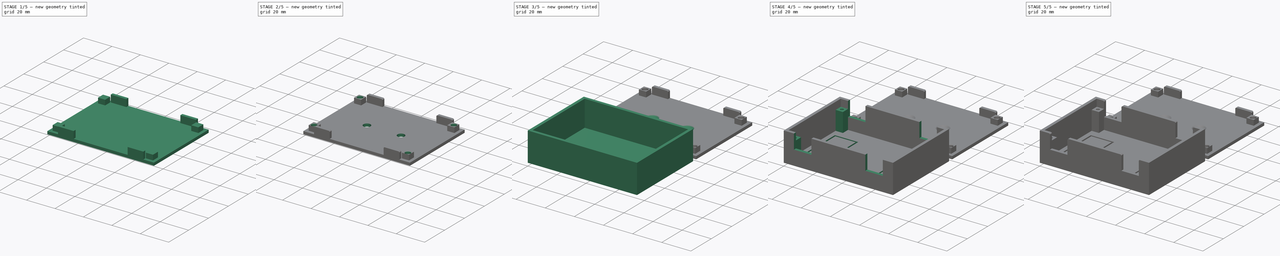
[diagram: build sequence overview — one tinted view per stage of 5, left to right]
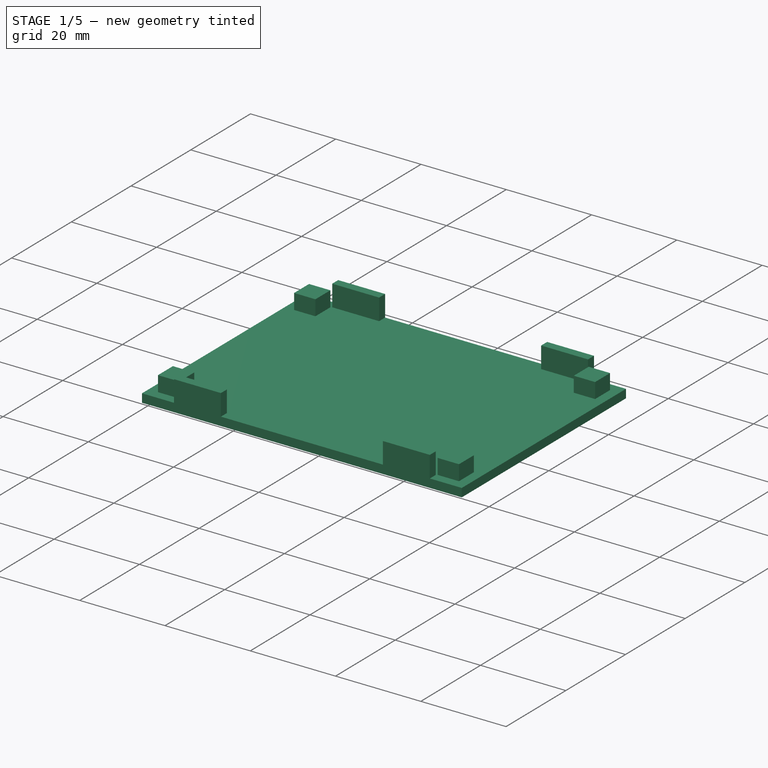
[diagram: stage 1 of 5 — iso view after this stage's code; geometry added in this stage tinted green]
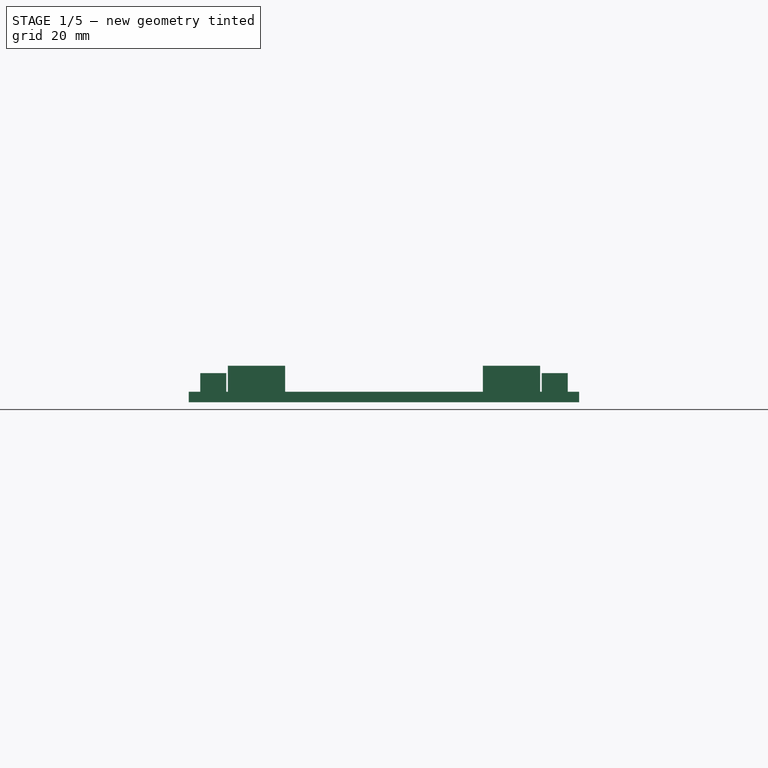
[diagram: stage 1 of 5 — front view after this stage's code; geometry added in this stage tinted green]
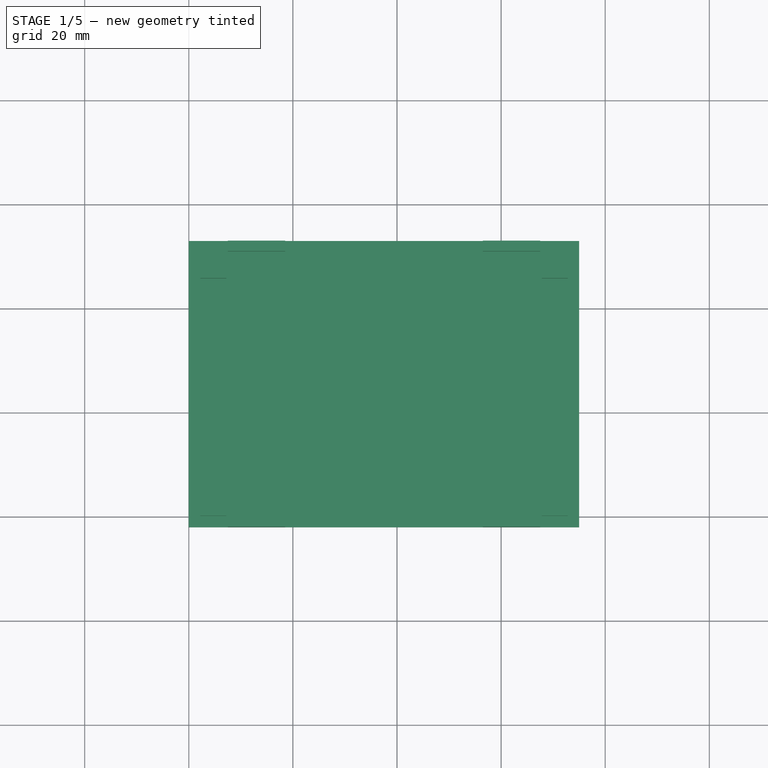
[diagram: stage 1 of 5 — top view after this stage's code; geometry added in this stage tinted green]
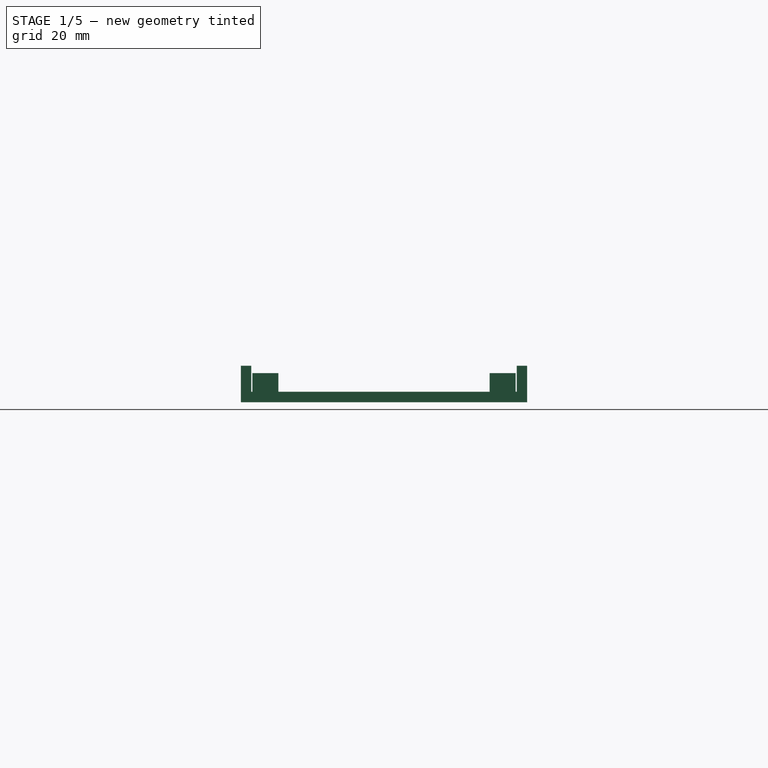
[diagram: stage 1 of 5 — right view after this stage's code; geometry added in this stage tinted green]
FCSTD DOCUMENT  (FreeCAD 0.20R29177 +426 (Git))
Label: Button_Housing
License: All rights reserved
LicenseURL: http://en.wikipedia.org/wiki/All_rights_reserved
objects: Sketcher::SketchObject×12, PartDesign::Pocket×7, PartDesign::Pad×5, PartDesign::Chamfer×4, PartDesign::Body×2, App::Part×2, PartDesign::Fillet×1
note: 48 computed .brp shape members not serialized (recipe doc carries the construction recipe); baked Part::Feature solids carry a one-line shape summary decoded from their .brp

FEATURE [PartDesign::Body] Body
  Group = -> [Sketch,Pad,Sketch001,Pocket,Sketch002,Pad001,Sketch003,Pocket001,Sketch004,Pocket002,Sketch006,Pocket004,Sketch007,Pocket005,Fillet,Chamfer]
  Origin = -> Origin001
  Tip = -> Chamfer
FEATURE [App::Part] Part
  Group = -> [Body]
  Origin = -> Origin
FEATURE [Sketcher::SketchObject] Sketch008
  FullyConstrained = true
  MapMode = 5
  Support = -> [XY_Plane003]
  sketch-geometry (4):
    g0: LineSegment StartX=0 StartY=58 StartZ=0 EndX=75 EndY=58 EndZ=0
    g1: LineSegment StartX=75 StartY=58 StartZ=0 EndX=75 EndY=113 EndZ=0
    g2: LineSegment StartX=75 StartY=113 StartZ=0 EndX=0 EndY=113 EndZ=0
    g3: LineSegment StartX=0 StartY=113 StartZ=0 EndX=0 EndY=58 EndZ=0
  constraints (12):
    c: Coincident(g0,g1)
    c: Coincident(g1,g2)
    c: Coincident(g2,g3)
    c: Coincident(g3,g0)
    c: Horizontal(g0)
    c: Horizontal(g2)
    c: Vertical(g1)
    c: Vertical(g3)
    c: PointOnObject(g0,g-2)
    c: DistanceY(g-1,g0) = 58
    c: DistanceY(g3,g3) = 55
    c: DistanceX(g0,g0) = 75
FEATURE [PartDesign::Pad] Pad002
  Direction = (0,0,1)
  Length = 2
  Length2 = 10
  Profile = -> Sketch008
  ReferenceAxis = -> Sketch008 [N_Axis]
  Type = 0
FEATURE [Sketcher::SketchObject] Sketch009
  FullyConstrained = true
  MapMode = 5
  Placement = pos=(0,0,2) rot=(0,0,1;0rad)
  Support = -> [Pad002]
  sketch-geometry (16):
    g0: LineSegment StartX=7.5 StartY=58 StartZ=0 EndX=18.5 EndY=58 EndZ=0
    g1: LineSegment StartX=18.5 StartY=58 StartZ=0 EndX=18.5 EndY=60 EndZ=0
    g2: LineSegment StartX=18.5 StartY=60 StartZ=0 EndX=7.5 EndY=60 EndZ=0
    g3: LineSegment StartX=7.5 StartY=60 StartZ=0 EndX=7.5 EndY=58 EndZ=0
    g4: LineSegment StartX=56.5 StartY=58 StartZ=0 EndX=67.5 EndY=58 EndZ=0
    g5: LineSegment StartX=67.5 StartY=58 StartZ=0 EndX=67.5 EndY=60 EndZ=0
    g6: LineSegment StartX=67.5 StartY=60 StartZ=0 EndX=56.5 EndY=60 EndZ=0
    g7: LineSegment StartX=56.5 StartY=60 StartZ=0 EndX=56.5 EndY=58 EndZ=0
    g8: LineSegment StartX=7.5 StartY=111 StartZ=0 EndX=18.5 EndY=111 EndZ=0
    g9: LineSegment StartX=18.5 StartY=111 StartZ=0 EndX=18.5 EndY=113 EndZ=0
    g10: LineSegment StartX=18.5 StartY=113 StartZ=0 EndX=7.5 EndY=113 EndZ=0
    g11: LineSegment StartX=7.5 StartY=113 StartZ=0 EndX=7.5 EndY=111 EndZ=0
    g12: LineSegment StartX=56.5 StartY=111 StartZ=0 EndX=67.5 EndY=111 EndZ=0
    g13: LineSegment StartX=67.5 StartY=111 StartZ=0 EndX=67.5 EndY=113 EndZ=0
    g14: LineSegment StartX=67.5 StartY=113 StartZ=0 EndX=56.5 EndY=113 EndZ=0
    g15: LineSegment StartX=56.5 StartY=113 StartZ=0 EndX=56.5 EndY=111 EndZ=0
  constraints (48):
    c: Coincident(g0,g1)
    c: Coincident(g1,g2)
    c: Coincident(g2,g3)
    c: Coincident(g3,g0)
    c: Horizontal(g0)
    c: Horizontal(g2)
    c: Vertical(g1)
    c: Vertical(g3)
    c: Coincident(g4,g5)
    c: Coincident(g5,g6)
    c: Coincident(g6,g7)
    c: Coincident(g7,g4)
    c: Horizontal(g4)
    c: Horizontal(g6)
    c: Vertical(g5)
    c: Vertical(g7)
    c: Coincident(g8,g9)
    c: Coincident(g9,g10)
    c: Coincident(g10,g11)
    c: Coincident(g11,g8)
    c: Horizontal(g8)
    c: Horizontal(g10)
    c: Vertical(g9)
    c: Vertical(g11)
    c: Coincident(g12,g13)
    c: Coincident(g13,g14)
    c: Coincident(g14,g15)
    c: Coincident(g15,g12)
    c: Horizontal(g12)
    c: Horizontal(g14)
    c: Vertical(g13)
    c: Vertical(g15)
    c: Equal(g15,g11)
    c: Equal(g11,g3)
    c: Equal(g3,g7)
    c: Equal(g4,g0)
    c: Equal(g0,g8)
    c: Equal(g8,g12)
    c: Vertical(g8,g0)
    c: Vertical(g12,g4)
    c: Horizontal(g0,g4)
    c: Horizontal(g8,g12)
    c: DistanceY(g-1,g0) = 58
    c: DistanceX(g0,g0) = 11
    c: DistanceX(g-1,g0) = 7.5
    c: DistanceX(g-1,g4) = 67.5
    c: DistanceY(g3,g3) = 2
    c: DistanceY(g0,g10) = 55
FEATURE [PartDesign::Pad] Pad003
  BaseFeature = -> Pad002
  Direction = (0,0,1)
  Length = 5
  Length2 = 10
  Profile = -> Sketch009
  ReferenceAxis = -> Sketch009 [N_Axis]
  Type = 0
FEATURE [Sketcher::SketchObject] Sketch010
  FullyConstrained = true
  MapMode = 5
  Placement = pos=(0,0,2) rot=(0,0,1;0rad)
  Support = -> [Pad003]
  expr: Constraints[41] = 55 - 4.4
  sketch-geometry (16):
    g0: LineSegment StartX=2.2 StartY=60.2 StartZ=0 EndX=7.2 EndY=60.2 EndZ=0
    g1: LineSegment StartX=7.2 StartY=60.2 StartZ=0 EndX=7.2 EndY=65.2 EndZ=0
    g2: LineSegment StartX=7.2 StartY=65.2 StartZ=0 EndX=2.2 EndY=65.2 EndZ=0
    g3: LineSegment StartX=2.2 StartY=65.2 StartZ=0 EndX=2.2 EndY=60.2 EndZ=0
    g4: LineSegment StartX=67.8 StartY=60.2 StartZ=0 EndX=72.8 EndY=60.2 EndZ=0
    g5: LineSegment StartX=72.8 StartY=60.2 StartZ=0 EndX=72.8 EndY=65.2 EndZ=0
    g6: LineSegment StartX=72.8 StartY=65.2 StartZ=0 EndX=67.8 EndY=65.2 EndZ=0
    g7: LineSegment StartX=67.8 StartY=65.2 StartZ=0 EndX=67.8 EndY=60.2 EndZ=0
    g8: LineSegment StartX=2.2 StartY=110.8 StartZ=0 EndX=7.2 EndY=110.8 EndZ=0
    g9: LineSegment StartX=7.2 StartY=110.8 StartZ=0 EndX=7.2 EndY=105.8 EndZ=0
    g10: LineSegment StartX=7.2 StartY=105.8 StartZ=0 EndX=2.2 EndY=105.8 EndZ=0
    g11: LineSegment StartX=2.2 StartY=105.8 StartZ=0 EndX=2.2 EndY=110.8 EndZ=0
    g12: LineSegment StartX=67.8 StartY=110.8 StartZ=0 EndX=72.8 EndY=110.8 EndZ=0
    g13: LineSegment StartX=72.8 StartY=110.8 StartZ=0 EndX=72.8 EndY=105.8 EndZ=0
    g14: LineSegment StartX=72.8 StartY=105.8 StartZ=0 EndX=67.8 EndY=105.8 EndZ=0
    g15: LineSegment StartX=67.8 StartY=105.8 StartZ=0 EndX=67.8 EndY=110.8 EndZ=0
  constraints (48):
    c: Coincident(g0,g1)
    c: Coincident(g1,g2)
    c: Coincident(g2,g3)
    c: Coincident(g3,g0)
    c: Horizontal(g0)
    c: Horizontal(g2)
    c: Vertical(g1)
    c: Vertical(g3)
    c: Coincident(g4,g5)
    c: Coincident(g5,g6)
    c: Coincident(g6,g7)
    c: Coincident(g7,g4)
    c: Horizontal(g4)
    c: Horizontal(g6)
    c: Vertical(g5)
    c: Vertical(g7)
    c: Coincident(g8,g9)
    c: Coincident(g9,g10)
    c: Coincident(g10,g11)
    c: Coincident(g11,g8)
    c: Horizontal(g8)
    c: Horizontal(g10)
    c: Vertical(g9)
    c: Vertical(g11)
    c: Coincident(g12,g13)
    c: Coincident(g13,g14)
    c: Coincident(g14,g15)
    c: Coincident(g15,g12)
    c: Horizontal(g12)
    c: Horizontal(g14)
    c: Vertical(g13)
    c: Vertical(g15)
    c: DistanceX(g-1,g0) = 2.2
    c: Equal(g0,g3)
    c: Equal(g3,g4)
    c: Equal(g4,g7)
    c: Equal(g7,g11)
    c: Equal(g11,g10)
    c: Equal(g10,g15)
    c: Equal(g15,g14)
    c: DistanceX(g-1,g4) = 72.8
    c: DistanceY(g0,g8) = 50.6
    c: Horizontal(g12,g8)
    c: Horizontal(g2,g6)
    c: Vertical(g0,g10)
    c: Vertical(g6,g14)
    c: DistanceX(g0,g0) = 5
    c: DistanceY(g-1,g0) = 60.2
FEATURE [PartDesign::Pad] Pad004
  BaseFeature = -> Pad003
  Direction = (0,0,1)
  Length = 3.6
  Length2 = 10
  Profile = -> Sketch010
  ReferenceAxis = -> Sketch010 [N_Axis]
  Type = 0
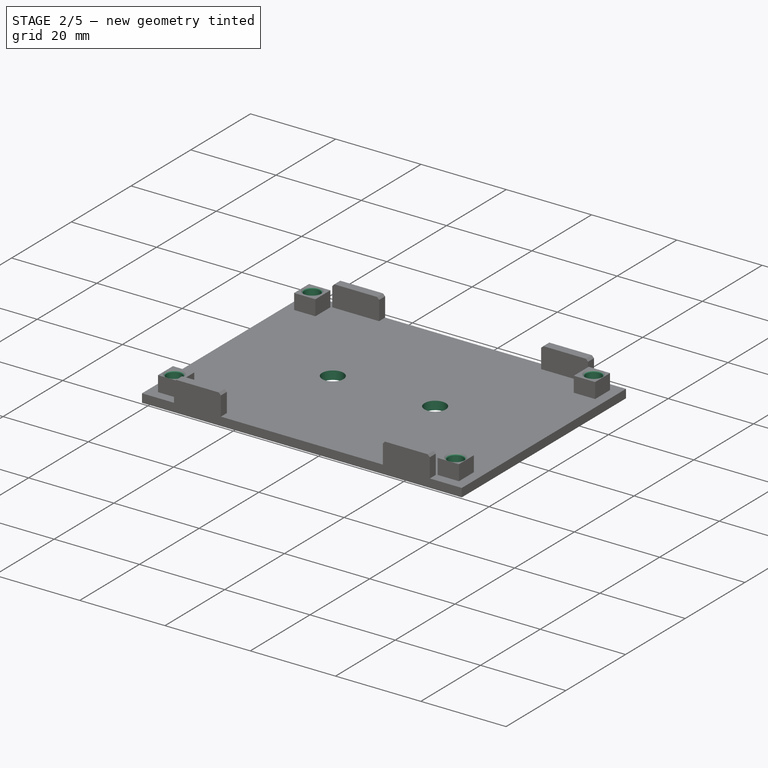
[diagram: stage 2 of 5 — iso view after this stage's code; geometry added in this stage tinted green]
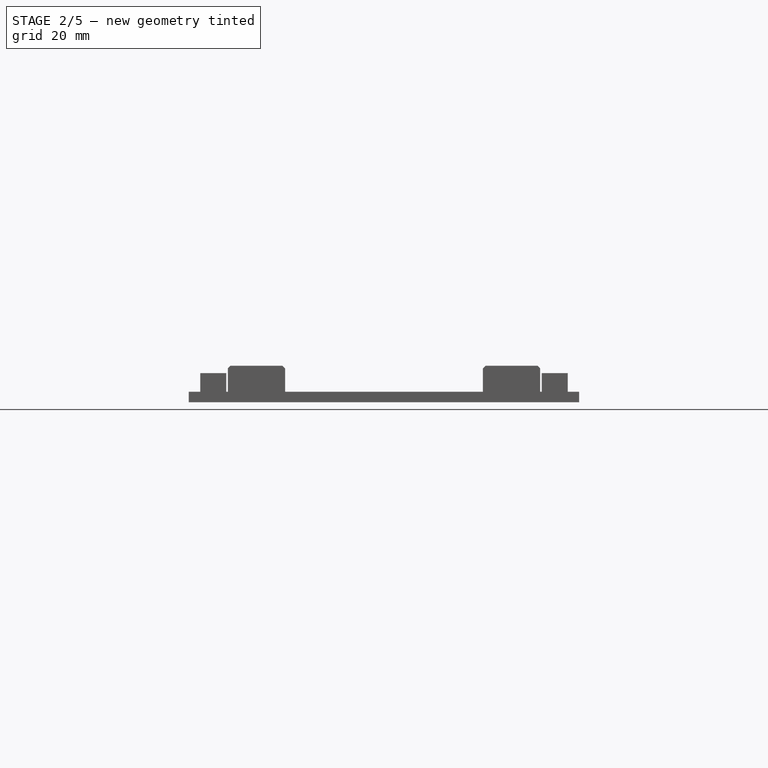
[diagram: stage 2 of 5 — front view after this stage's code; geometry added in this stage tinted green]
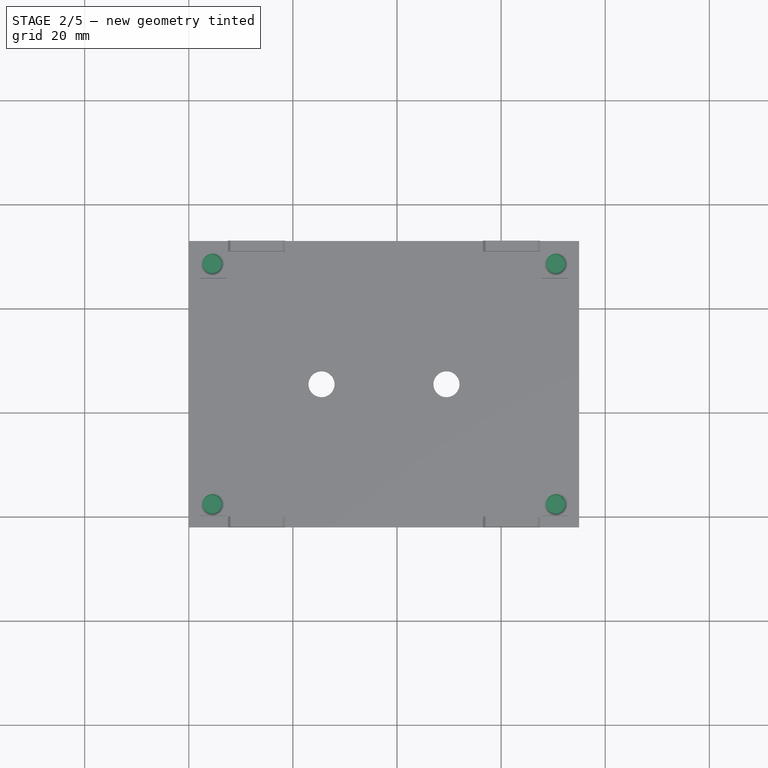
[diagram: stage 2 of 5 — top view after this stage's code; geometry added in this stage tinted green]
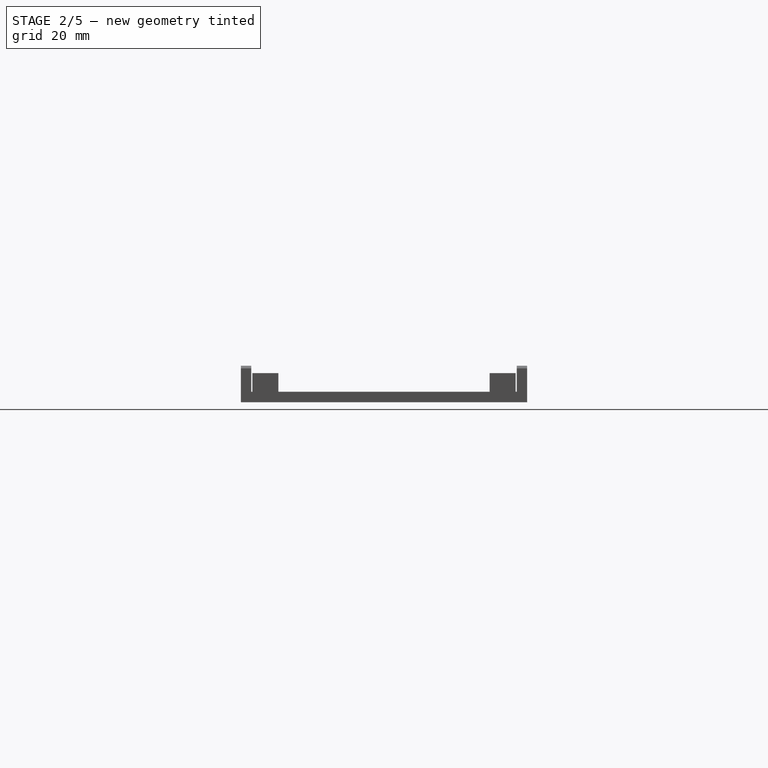
[diagram: stage 2 of 5 — right view after this stage's code; geometry added in this stage tinted green]
FEATURE [Sketcher::SketchObject] Sketch011
  FullyConstrained = true
  MapMode = 5
  Placement = pos=(0,0,5.6) rot=(0,0,1;0rad)
  Support = -> [Pad004]
  sketch-geometry (4):
    g0: Circle CenterX=4.5 CenterY=62.4 CenterZ=0 NormalX=0 NormalY=0 NormalZ=1 AngleXU=0 Radius=1.8
    g1: Circle CenterX=70.5 CenterY=62.4 CenterZ=0 NormalX=0 NormalY=0 NormalZ=1 AngleXU=0 Radius=1.8
    g2: Circle CenterX=70.5 CenterY=108.6 CenterZ=0 NormalX=0 NormalY=0 NormalZ=1 AngleXU=0 Radius=1.8
    g3: Circle CenterX=4.5 CenterY=108.6 CenterZ=0 NormalX=0 NormalY=0 NormalZ=1 AngleXU=0 Radius=1.8
  constraints (12):
    c: Equal(g3,g0)
    c: Equal(g0,g1)
    c: Equal(g1,g2)
    c: Horizontal(g3,g2)
    c: Horizontal(g0,g1)
    c: Vertical(g1,g2)
    c: Vertical(g3,g0)
    c: DistanceX(g0,g1) = 66
    c: DistanceY(g0,g3) = 46.2
    c: DistanceX(g-1,g0) = 4.5
    c: DistanceY(g-1,g0) = 62.4
    c: Diameter(g0) = 3.6
FEATURE [PartDesign::Pocket] Pocket006
  BaseFeature = -> Pad004
  Direction = (0,0,-1)
  Length = 4
  Length2 = 5
  Profile = -> Sketch011
  ReferenceAxis = -> Sketch011 [N_Axis]
  Type = 0
FEATURE [PartDesign::Chamfer] Chamfer001
  Angle = 45
  Base = -> Pocket006 [Edge59,Edge66,Edge71,Edge78,Edge69,Edge77,Edge57,Edge65]
  BaseFeature = -> Pocket006
  ChamferType = 0
  FlipDirection = false
  Size = 0.5
  Size2 = 1
  SupportTransform = false
  UseAllEdges = false
FEATURE [PartDesign::Chamfer] Chamfer002
  Angle = 45
  Base = -> Chamfer001 [Edge139,Edge140,Edge138,Edge137]
  BaseFeature = -> Chamfer001
  ChamferType = 0
  FlipDirection = false
  Size = 0.4
  Size2 = 1
  SupportTransform = false
  UseAllEdges = false
FEATURE [Sketcher::SketchObject] Sketch012
  FullyConstrained = true
  MapMode = 5
  Placement = pos=(0,0,2) rot=(0,0,1;0rad)
  Support = -> [Chamfer002]
  sketch-geometry (2):
    g0: Circle CenterX=25.5 CenterY=85.5 CenterZ=0 NormalX=0 NormalY=0 NormalZ=1 AngleXU=0 Radius=2.5
    g1: Circle CenterX=49.5 CenterY=85.5 CenterZ=0 NormalX=0 NormalY=0 NormalZ=1 AngleXU=0 Radius=2.5
  constraints (6):
    c: Equal(g0,g1)
    c: Horizontal(g0,g1)
    c: Diameter(g0) = 5
    c: DistanceX(g0,g1) = 24
    c: DistanceX(g-1,g0) = 25.5
    c: DistanceY(g-1,g0) = 85.5
FEATURE [PartDesign::Pocket] Pocket007
  BaseFeature = -> Chamfer002
  Direction = (0,0,-1)
  Length = 5
  Length2 = 5
  Profile = -> Sketch012
  ReferenceAxis = -> Sketch012 [N_Axis]
  Type = 1
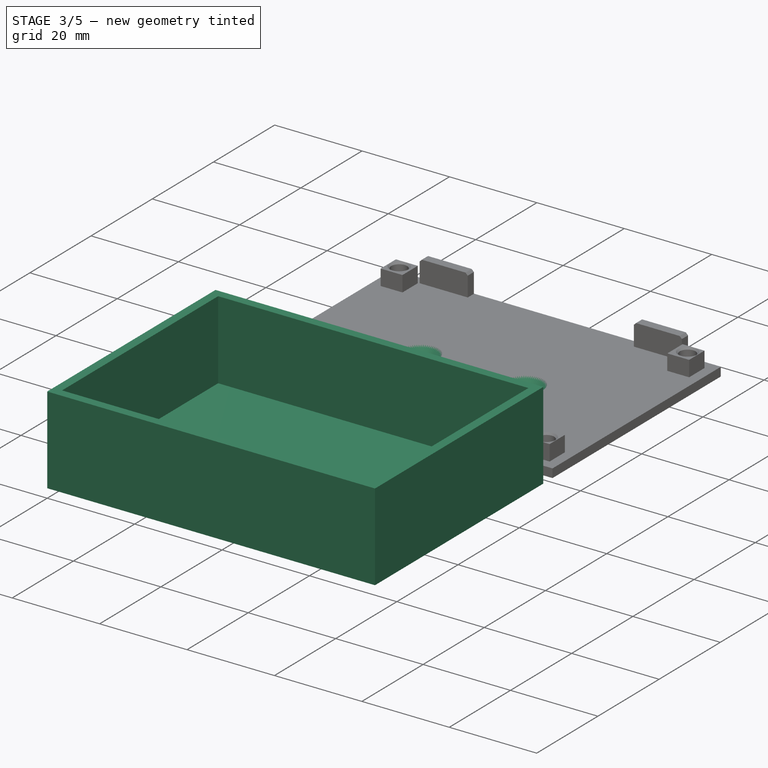
[diagram: stage 3 of 5 — iso view after this stage's code; geometry added in this stage tinted green]
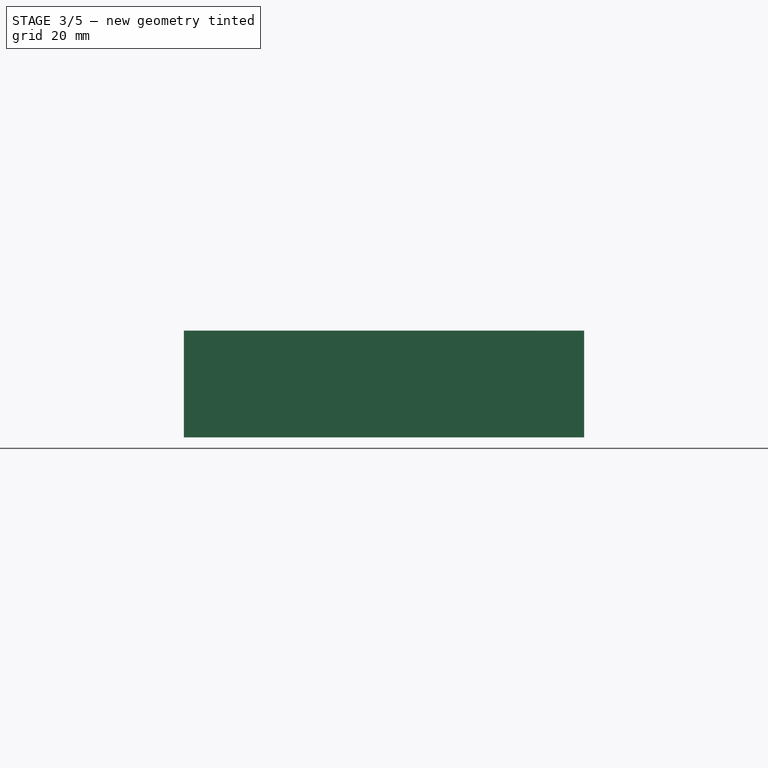
[diagram: stage 3 of 5 — front view after this stage's code; geometry added in this stage tinted green]
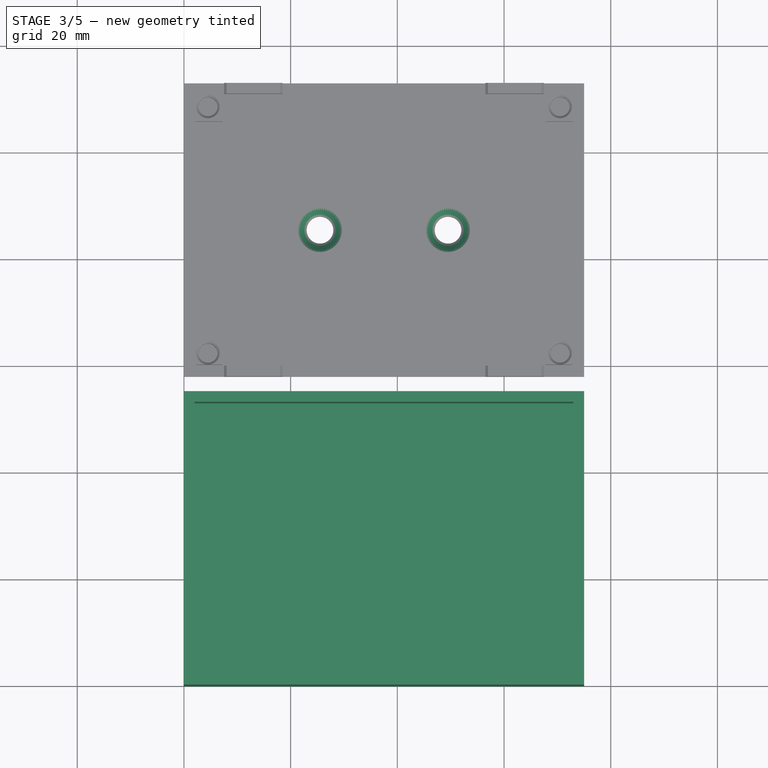
[diagram: stage 3 of 5 — top view after this stage's code; geometry added in this stage tinted green]
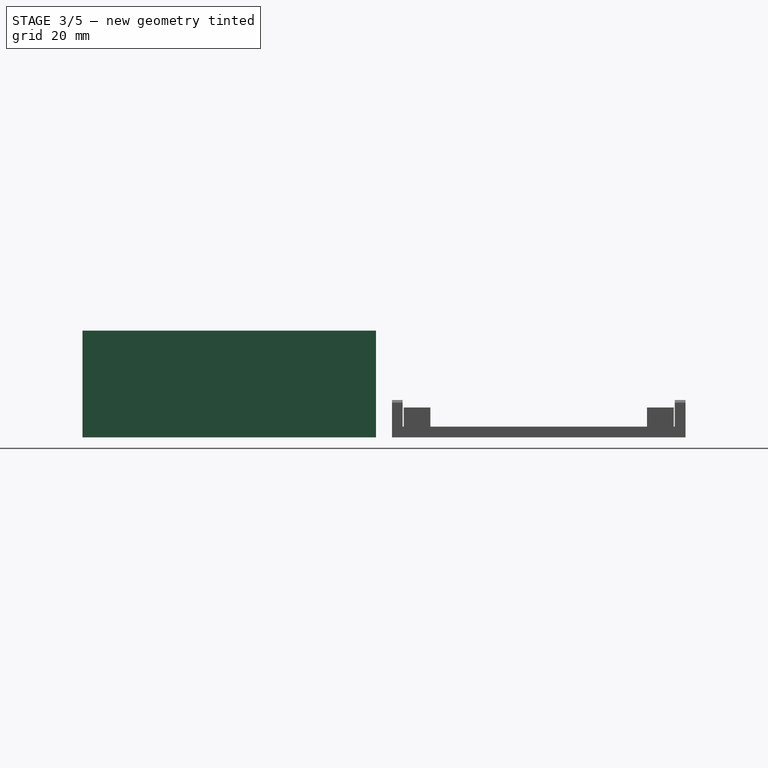
[diagram: stage 3 of 5 — right view after this stage's code; geometry added in this stage tinted green]
FEATURE [Sketcher::SketchObject] Sketch
  FullyConstrained = true
  MapMode = 5
  Support = -> [XY_Plane001]
  sketch-geometry (4):
    g0: LineSegment StartX=0 StartY=0 StartZ=0 EndX=75 EndY=0 EndZ=0
    g1: LineSegment StartX=75 StartY=0 StartZ=0 EndX=75 EndY=55 EndZ=0
    g2: LineSegment StartX=75 StartY=55 StartZ=0 EndX=0 EndY=55 EndZ=0
    g3: LineSegment StartX=0 StartY=55 StartZ=0 EndX=0 EndY=0 EndZ=0
  constraints (11):
    c: Coincident(g0,g1)
    c: Coincident(g1,g2)
    c: Coincident(g2,g3)
    c: Coincident(g3,g0)
    c: Horizontal(g0)
    c: Horizontal(g2)
    c: Vertical(g1)
    c: Vertical(g3)
    c: Coincident(g0,g-1)
    c: DistanceX(g0,g0) = 75
    c: DistanceY(g3,g3) = 55
FEATURE [PartDesign::Pad] Pad
  Direction = (0,0,1)
  Length = 20
  Length2 = 10
  Profile = -> Sketch
  ReferenceAxis = -> Sketch [N_Axis]
  Type = 0
FEATURE [Sketcher::SketchObject] Sketch001
  FullyConstrained = true
  MapMode = 5
  Placement = pos=(0,0,20) rot=(0,0,1;0rad)
  Support = -> [Pad]
  sketch-geometry (4):
    g0: LineSegment StartX=2 StartY=2 StartZ=0 EndX=73 EndY=2 EndZ=0
    g1: LineSegment StartX=73 StartY=2 StartZ=0 EndX=73 EndY=53 EndZ=0
    g2: LineSegment StartX=73 StartY=53 StartZ=0 EndX=2 EndY=53 EndZ=0
    g3: LineSegment StartX=2 StartY=53 StartZ=0 EndX=2 EndY=2 EndZ=0
  constraints (12):
    c: Coincident(g0,g1)
    c: Coincident(g1,g2)
    c: Coincident(g2,g3)
    c: Coincident(g3,g0)
    c: Horizontal(g0)
    c: Horizontal(g2)
    c: Vertical(g1)
    c: Vertical(g3)
    c: DistanceY(g3,g3) = 51
    c: DistanceX(g0,g0) = 71
    c: DistanceY(g-1,g0) = 2
    c: DistanceX(g-1,g0) = 2
FEATURE [PartDesign::Pocket] Pocket
  BaseFeature = -> Pad
  Direction = (0,0,-1)
  Length = 18
  Length2 = 5
  Profile = -> Sketch001
  ReferenceAxis = -> Sketch001 [N_Axis]
  Type = 0
FEATURE [PartDesign::Chamfer] Chamfer003
  Angle = 48
  Base = -> Pocket007 [Edge41,Edge47]
  BaseFeature = -> Pocket007
  ChamferType = 2
  FlipDirection = false
  Size = 1.6
  Size2 = 1
  SupportTransform = false
  UseAllEdges = false
FEATURE [PartDesign::Body] Body001
  Group = -> [Sketch008,Pad002,Sketch009,Pad003,Sketch010,Pad004,Sketch011,Pocket006,Chamfer001,Chamfer002,Sketch012,Pocket007,Chamfer003]
  Origin = -> Origin003
  Tip = -> Chamfer003
FEATURE [App::Part] Part001
  Group = -> [Body001]
  Origin = -> Origin002
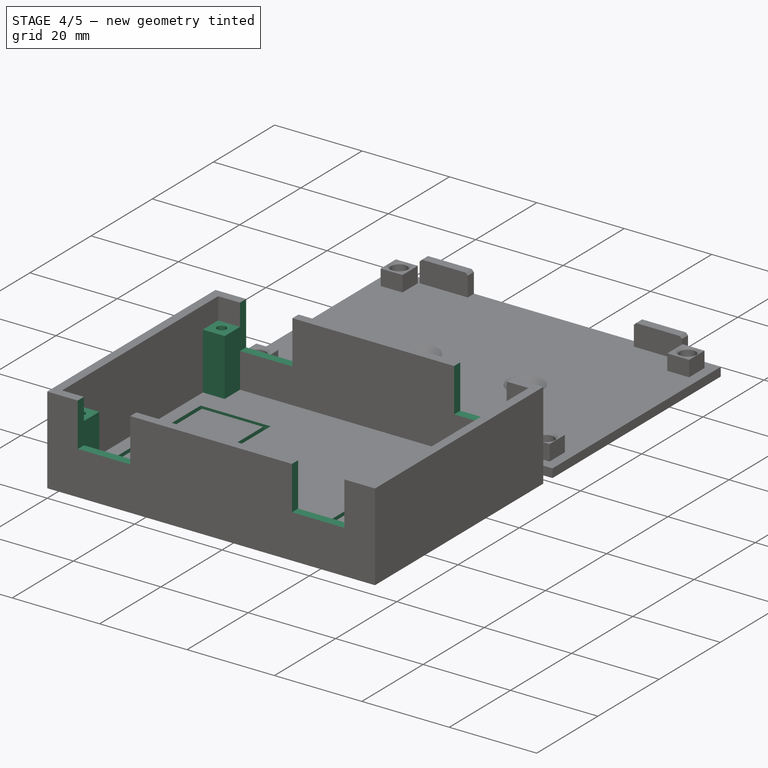
[diagram: stage 4 of 5 — iso view after this stage's code; geometry added in this stage tinted green]
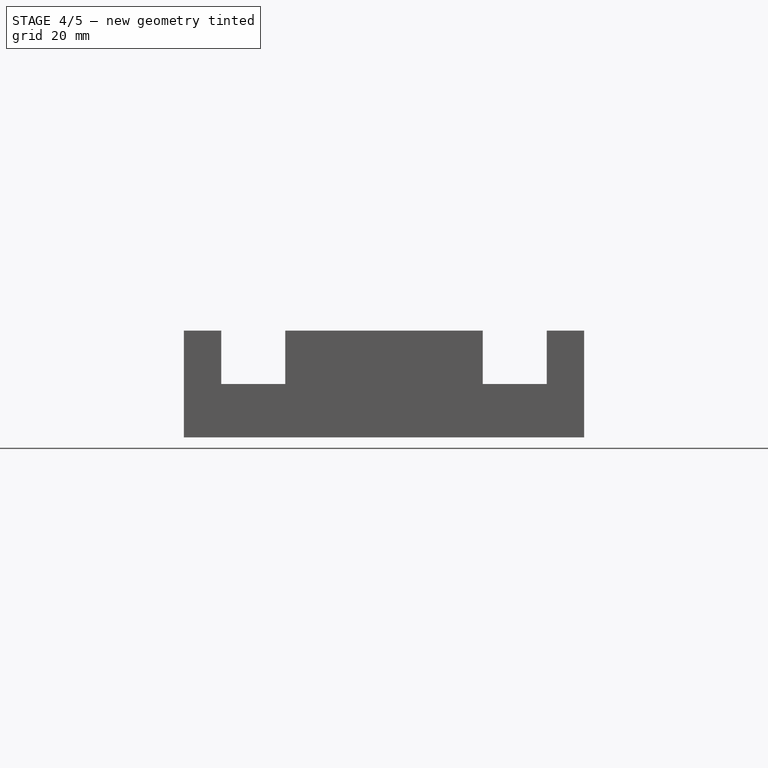
[diagram: stage 4 of 5 — front view after this stage's code; geometry added in this stage tinted green]
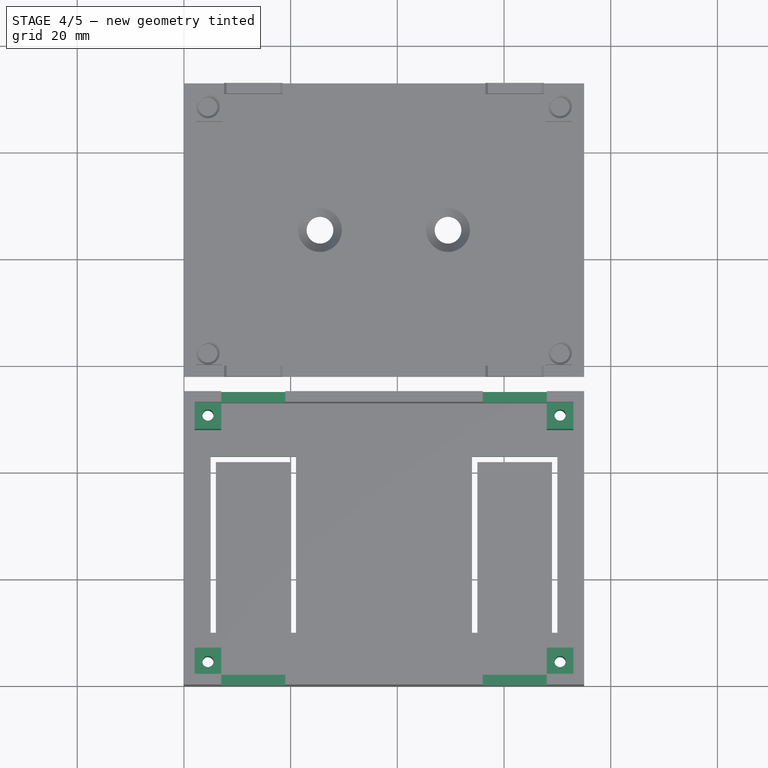
[diagram: stage 4 of 5 — top view after this stage's code; geometry added in this stage tinted green]
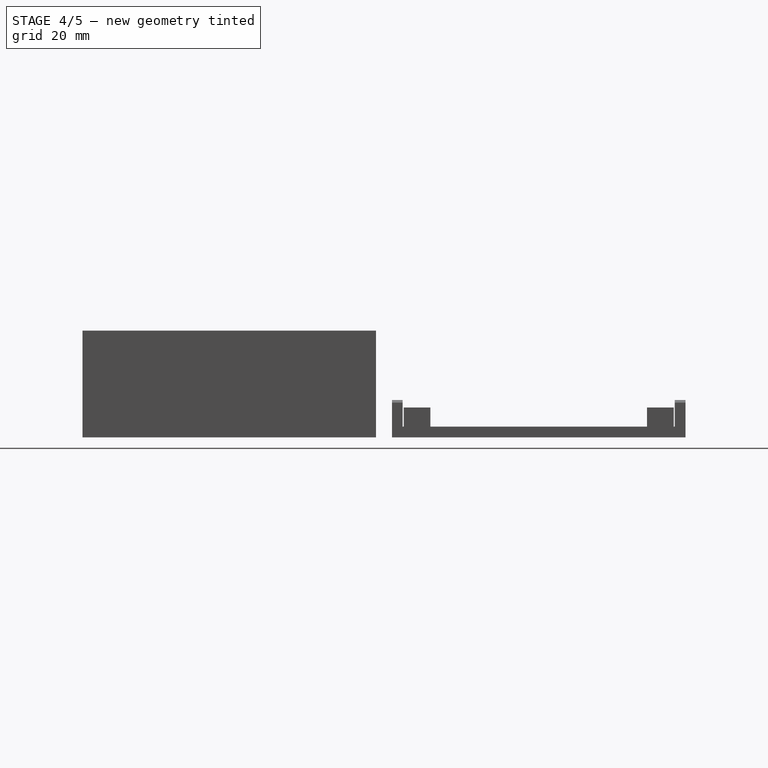
[diagram: stage 4 of 5 — right view after this stage's code; geometry added in this stage tinted green]
FEATURE [Sketcher::SketchObject] Sketch002
  FullyConstrained = true
  MapMode = 5
  Placement = pos=(0,0,2) rot=(0,0,1;0rad)
  Support = -> [Pocket]
  sketch-geometry (16):
    g0: LineSegment StartX=2 StartY=2 StartZ=0 EndX=7 EndY=2 EndZ=0
    g1: LineSegment StartX=7 StartY=2 StartZ=0 EndX=7 EndY=7 EndZ=0
    g2: LineSegment StartX=7 StartY=7 StartZ=0 EndX=2 EndY=7 EndZ=0
    g3: LineSegment StartX=2 StartY=7 StartZ=0 EndX=2 EndY=2 EndZ=0
    g4: LineSegment StartX=68 StartY=2 StartZ=0 EndX=73 EndY=2 EndZ=0
    g5: LineSegment StartX=73 StartY=2 StartZ=0 EndX=73 EndY=7 EndZ=0
    g6: LineSegment StartX=73 StartY=7 StartZ=0 EndX=68 EndY=7 EndZ=0
    g7: LineSegment StartX=68 StartY=7 StartZ=0 EndX=68 EndY=2 EndZ=0
    g8: LineSegment StartX=2 StartY=53 StartZ=0 EndX=7 EndY=53 EndZ=0
    g9: LineSegment StartX=7 StartY=53 StartZ=0 EndX=7 EndY=48 EndZ=0
    g10: LineSegment StartX=7 StartY=48 StartZ=0 EndX=2 EndY=48 EndZ=0
    g11: LineSegment StartX=2 StartY=48 StartZ=0 EndX=2 EndY=53 EndZ=0
    g12: LineSegment StartX=68 StartY=53 StartZ=0 EndX=73 EndY=53 EndZ=0
    g13: LineSegment StartX=73 StartY=53 StartZ=0 EndX=73 EndY=48 EndZ=0
    g14: LineSegment StartX=73 StartY=48 StartZ=0 EndX=68 EndY=48 EndZ=0
    g15: LineSegment StartX=68 StartY=48 StartZ=0 EndX=68 EndY=53 EndZ=0
  constraints (48):
    c: Coincident(g0,g1)
    c: Coincident(g1,g2)
    c: Coincident(g2,g3)
    c: Coincident(g3,g0)
    c: Horizontal(g0)
    c: Horizontal(g2)
    c: Vertical(g1)
    c: Vertical(g3)
    c: Coincident(g4,g5)
    c: Coincident(g5,g6)
    c: Coincident(g6,g7)
    c: Coincident(g7,g4)
    c: Horizontal(g4)
    c: Horizontal(g6)
    c: Vertical(g5)
    c: Vertical(g7)
    c: Coincident(g8,g9)
    c: Coincident(g9,g10)
    c: Coincident(g10,g11)
    c: Coincident(g11,g8)
    c: Horizontal(g8)
    c: Horizontal(g10)
    c: Vertical(g9)
    c: Vertical(g11)
    c: Coincident(g12,g13)
    c: Coincident(g13,g14)
    c: Coincident(g14,g15)
    c: Coincident(g15,g12)
    c: Horizontal(g12)
    c: Horizontal(g14)
    c: Vertical(g13)
    c: Vertical(g15)
    c: Equal(g10,g11)
    c: Equal(g11,g14)
    c: Equal(g14,g15)
    c: Equal(g15,g4)
    c: Equal(g4,g7)
    c: Equal(g7,g0)
    c: Equal(g0,g3)
    c: DistanceX(g-1,g0) = 2
    c: DistanceY(g-1,g0) = 2
    c: Horizontal(g0,g4)
    c: Horizontal(g10,g14)
    c: Vertical(g10,g0)
    c: Vertical(g14,g4)
    c: DistanceY(g-1,g8) = 53
    c: DistanceX(g-1,g4) = 73
    c: DistanceX(g0,g0) = 5
FEATURE [PartDesign::Pad] Pad001
  BaseFeature = -> Pocket
  Direction = (0,0,1)
  Length = 13
  Length2 = 10
  Profile = -> Sketch002
  ReferenceAxis = -> Sketch002 [N_Axis]
  Type = 0
FEATURE [Sketcher::SketchObject] Sketch003
  FullyConstrained = true
  MapMode = 5
  Placement = pos=(0,0,2) rot=(0,0,1;0rad)
  Support = -> [Pad001]
  sketch-geometry (16):
    g0: LineSegment StartX=5 StartY=10 StartZ=0 EndX=5 EndY=43 EndZ=0
    g1: LineSegment StartX=5 StartY=43 StartZ=0 EndX=21 EndY=43 EndZ=0
    g2: LineSegment StartX=21 StartY=43 StartZ=0 EndX=21 EndY=10 EndZ=0
    g3: LineSegment StartX=21 StartY=10 StartZ=0 EndX=20 EndY=10 EndZ=0
    g4: LineSegment StartX=20 StartY=10 StartZ=0 EndX=20 EndY=42 EndZ=0
    g5: LineSegment StartX=20 StartY=42 StartZ=0 EndX=6 EndY=42 EndZ=0
    g6: LineSegment StartX=6 StartY=42 StartZ=0 EndX=6 EndY=10 EndZ=0
    g7: LineSegment StartX=6 StartY=10 StartZ=0 EndX=5 EndY=10 EndZ=0
    g8: LineSegment StartX=54 StartY=10 StartZ=0 EndX=54 EndY=43 EndZ=0
    g9: LineSegment StartX=54 StartY=43 StartZ=0 EndX=70 EndY=43 EndZ=0
    g10: LineSegment StartX=70 StartY=43 StartZ=0 EndX=70 EndY=10 EndZ=0
    g11: LineSegment StartX=70 StartY=10 StartZ=0 EndX=69 EndY=10 EndZ=0
    g12: LineSegment StartX=69 StartY=10 StartZ=0 EndX=69 EndY=42 EndZ=0
    g13: LineSegment StartX=69 StartY=42 StartZ=0 EndX=55 EndY=42 EndZ=0
    g14: LineSegment StartX=55 StartY=42 StartZ=0 EndX=55 EndY=10 EndZ=0
    g15: LineSegment StartX=55 StartY=10 StartZ=0 EndX=54 EndY=10 EndZ=0
  constraints (48):
    c: Vertical(g0)
    c: Coincident(g0,g1)
    c: Horizontal(g1)
    c: Coincident(g1,g2)
    c: Vertical(g2)
    c: Coincident(g2,g3)
    c: Horizontal(g3)
    c: Coincident(g3,g4)
    c: Vertical(g4)
    c: Coincident(g4,g5)
    c: Horizontal(g5)
    c: Coincident(g5,g6)
    c: Vertical(g6)
    c: Coincident(g6,g7)
    c: Coincident(g7,g0)
    c: Horizontal(g7)
    c: Horizontal(g0,g3)
    c: Equal(g7,g3)
    c: Vertical(g8)
    c: Coincident(g8,g9)
    c: Horizontal(g9)
    c: Coincident(g9,g10)
    c: Vertical(g10)
    c: Coincident(g10,g11)
    c: Horizontal(g11)
    c: Coincident(g11,g12)
    c: Vertical(g12)
    c: Coincident(g12,g13)
    c: Horizontal(g13)
    c: Coincident(g13,g14)
    c: Vertical(g14)
    c: Coincident(g14,g15)
    c: Coincident(g15,g8)
    c: Horizontal(g15)
    c: Horizontal(g3,g8)
    c: Horizontal(g8,g11)
    c: Equal(g3,g15)
    c: Equal(g15,g11)
    c: Equal(g1,g9)
    c: Equal(g0,g8)
    c: Equal(g6,g14)
    c: DistanceX(g1,g1) = 16
    c: DistanceX(g7,g7) = 1
    c: DistanceY(g0,g0) = 33
    c: DistanceY(g6,g6) = 32
    c: DistanceY(g-1,g0) = 10
    c: DistanceX(g-1,g0) = 5
    c: DistanceX(g-1,g10) = 70
FEATURE [PartDesign::Pocket] Pocket001
  BaseFeature = -> Pad001
  Direction = (0,0,-1)
  Length = 5
  Length2 = 5
  Profile = -> Sketch003
  ReferenceAxis = -> Sketch003 [N_Axis]
  Type = 1
FEATURE [Sketcher::SketchObject] Sketch004
  FullyConstrained = true
  MapMode = 5
  Placement = pos=(0,0,20) rot=(0,0,1;0rad)
  Support = -> [Pocket001]
  sketch-geometry (16):
    g0: LineSegment StartX=7 StartY=0 StartZ=0 EndX=19 EndY=0 EndZ=0
    g1: LineSegment StartX=19 StartY=0 StartZ=0 EndX=19 EndY=2 EndZ=0
    g2: LineSegment StartX=19 StartY=2 StartZ=0 EndX=7 EndY=2 EndZ=0
    g3: LineSegment StartX=7 StartY=2 StartZ=0 EndX=7 EndY=0 EndZ=0
    g4: LineSegment StartX=7 StartY=55 StartZ=0 EndX=19 EndY=55 EndZ=0
    g5: LineSegment StartX=19 StartY=55 StartZ=0 EndX=19 EndY=53 EndZ=0
    g6: LineSegment StartX=19 StartY=53 StartZ=0 EndX=7 EndY=53 EndZ=0
    g7: LineSegment StartX=7 StartY=53 StartZ=0 EndX=7 EndY=55 EndZ=0
    g8: LineSegment StartX=56 StartY=55 StartZ=0 EndX=68 EndY=55 EndZ=0
    g9: LineSegment StartX=68 StartY=55 StartZ=0 EndX=68 EndY=53 EndZ=0
    g10: LineSegment StartX=68 StartY=53 StartZ=0 EndX=56 EndY=53 EndZ=0
    g11: LineSegment StartX=56 StartY=53 StartZ=0 EndX=56 EndY=55 EndZ=0
    g12: LineSegment StartX=56 StartY=2 StartZ=0 EndX=68 EndY=2 EndZ=0
    g13: LineSegment StartX=68 StartY=2 StartZ=0 EndX=68 EndY=0 EndZ=0
    g14: LineSegment StartX=68 StartY=0 StartZ=0 EndX=56 EndY=0 EndZ=0
    g15: LineSegment StartX=56 StartY=0 StartZ=0 EndX=56 EndY=2 EndZ=0
  constraints (48):
    c: Coincident(g0,g1)
    c: Coincident(g1,g2)
    c: Coincident(g2,g3)
    c: Coincident(g3,g0)
    c: Horizontal(g0)
    c: Horizontal(g2)
    c: Vertical(g1)
    c: Vertical(g3)
    c: Coincident(g4,g5)
    c: Coincident(g5,g6)
    c: Coincident(g6,g7)
    c: Coincident(g7,g4)
    c: Horizontal(g4)
    c: Horizontal(g6)
    c: Vertical(g5)
    c: Vertical(g7)
    c: Coincident(g8,g9)
    c: Coincident(g9,g10)
    c: Coincident(g10,g11)
    c: Coincident(g11,g8)
    c: Horizontal(g8)
    c: Horizontal(g10)
    c: Vertical(g9)
    c: Vertical(g11)
    c: Coincident(g12,g13)
    c: Coincident(g13,g14)
    c: Coincident(g14,g15)
    c: Coincident(g15,g12)
    c: Horizontal(g12)
    c: Horizontal(g14)
    c: Vertical(g13)
    c: Vertical(g15)
    c: Equal(g0,g6)
    c: Equal(g6,g10)
    c: Equal(g10,g14)
    c: Equal(g7,g3)
    c: Equal(g3,g15)
    c: Equal(g15,g11)
    c: Horizontal(g0,g-1)
    c: Horizontal(g-1,g14)
    c: Vertical(g0,g6)
    c: Vertical(g10,g14)
    c: Horizontal(g6,g10)
    c: DistanceY(g3,g3) = 2
    c: DistanceX(g2,g2) = 12
    c: DistanceX(g-1,g0) = 7
    c: DistanceX(g-1,g13) = 68
    c: DistanceY(g-1,g4) = 55
FEATURE [PartDesign::Pocket] Pocket002
  BaseFeature = -> Pocket001
  Direction = (0,0,-1)
  Length = 10
  Length2 = 5
  Profile = -> Sketch004
  ReferenceAxis = -> Sketch004 [N_Axis]
  Type = 0
FEATURE [Sketcher::SketchObject] Sketch006
  FullyConstrained = true
  MapMode = 5
  Placement = pos=(0,0,15) rot=(0,0,1;0rad)
  expr: Constraints[10] = (55 - 46.2) / 2
  expr: Constraints[9] = (75 - 66) / 2
  sketch-geometry (4):
    g0: Circle CenterX=4.5 CenterY=4.4 CenterZ=0 NormalX=0 NormalY=0 NormalZ=1 AngleXU=0 Radius=1.05
    g1: Circle CenterX=4.5 CenterY=50.6 CenterZ=0 NormalX=0 NormalY=0 NormalZ=1 AngleXU=0 Radius=1.05
    g2: Circle CenterX=70.5 CenterY=50.6 CenterZ=0 NormalX=0 NormalY=0 NormalZ=1 AngleXU=0 Radius=1.05
    g3: Circle CenterX=70.5 CenterY=4.4 CenterZ=0 NormalX=0 NormalY=0 NormalZ=1 AngleXU=0 Radius=1.05
  constraints (12):
    c: Equal(g0,g1)
    c: Equal(g1,g2)
    c: Equal(g2,g3)
    c: Horizontal(g3,g0)
    c: Horizontal(g1,g2)
    c: Vertical(g3,g2)
    c: Vertical(g1,g0)
    c: DistanceY(g0,g1) = 46.2
    c: DistanceX(g0,g3) = 66
    c: DistanceX(g-1,g0) = 4.5
    c: DistanceY(g-1,g0) = 4.4
    c: Diameter(g0) = 2.1
FEATURE [PartDesign::Pocket] Pocket004
  BaseFeature = -> Pocket002
  Direction = (0,0,-1)
  Length = 5
  Length2 = 5
  Profile = -> Sketch006
  ReferenceAxis = -> Sketch006 [N_Axis]
  Type = 1
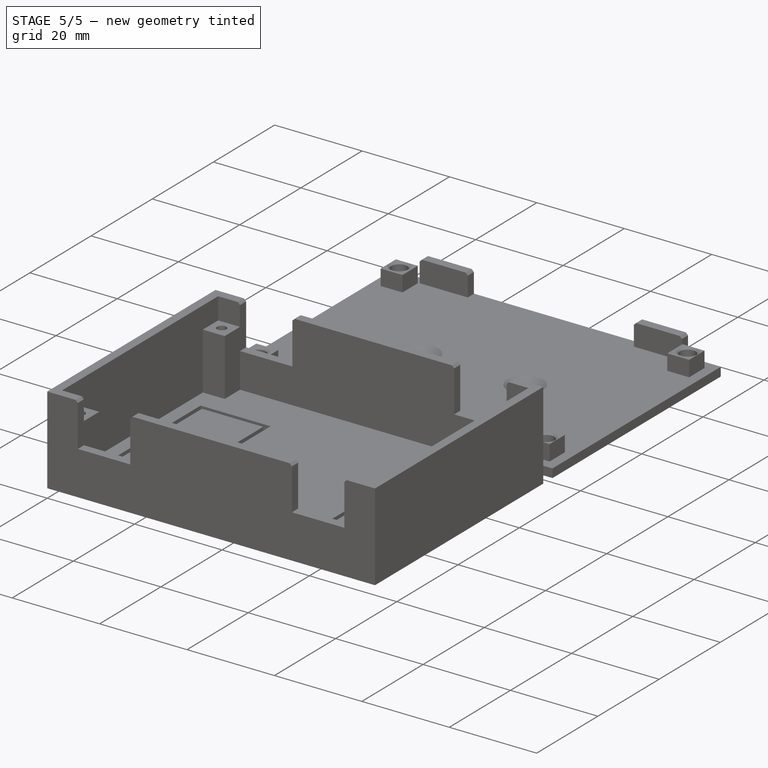
[diagram: stage 5 of 5 — iso view after this stage's code; geometry added in this stage tinted green]
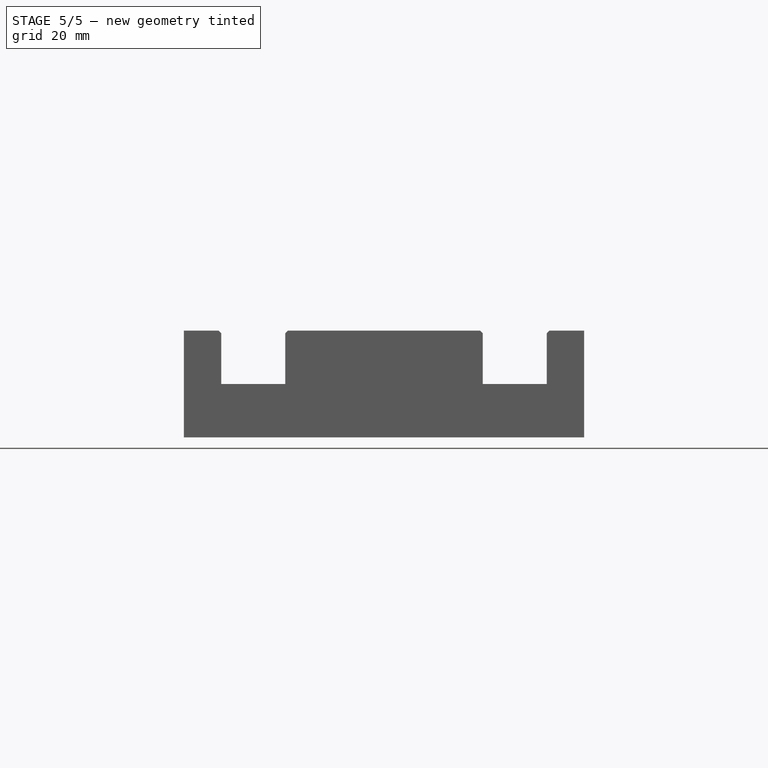
[diagram: stage 5 of 5 — front view after this stage's code; geometry added in this stage tinted green]
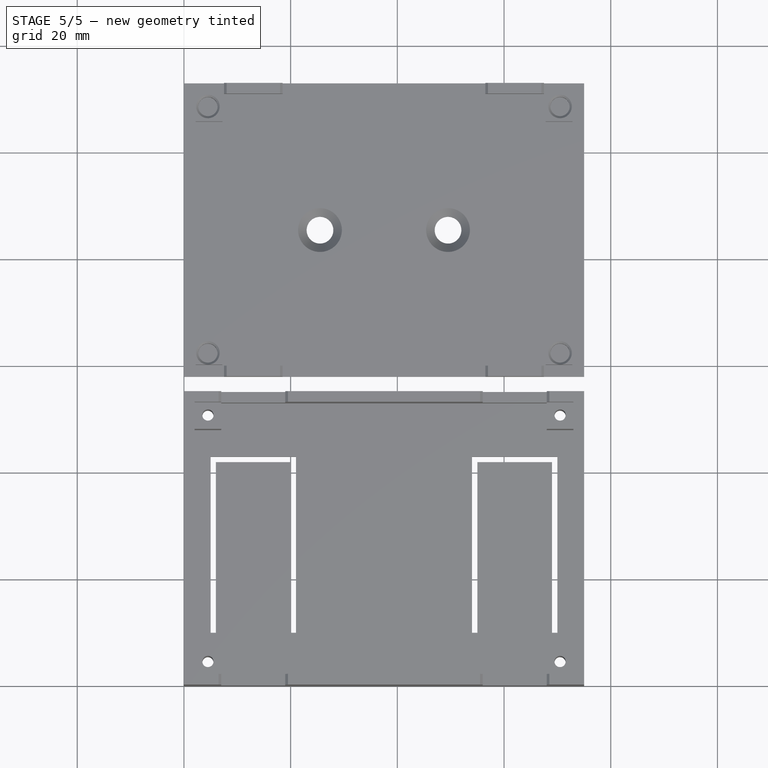
[diagram: stage 5 of 5 — top view after this stage's code; geometry added in this stage tinted green]
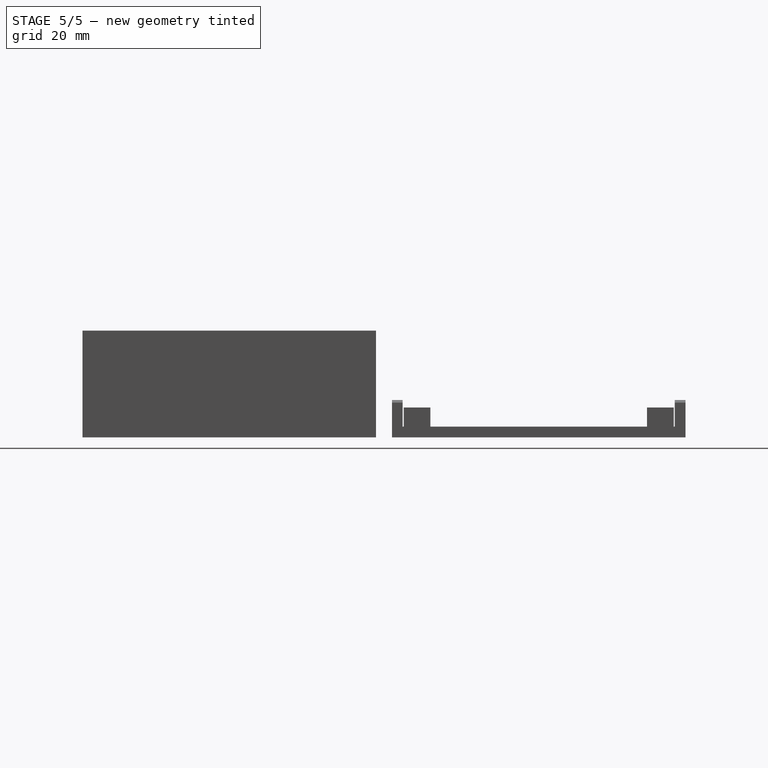
[diagram: stage 5 of 5 — right view after this stage's code; geometry added in this stage tinted green]
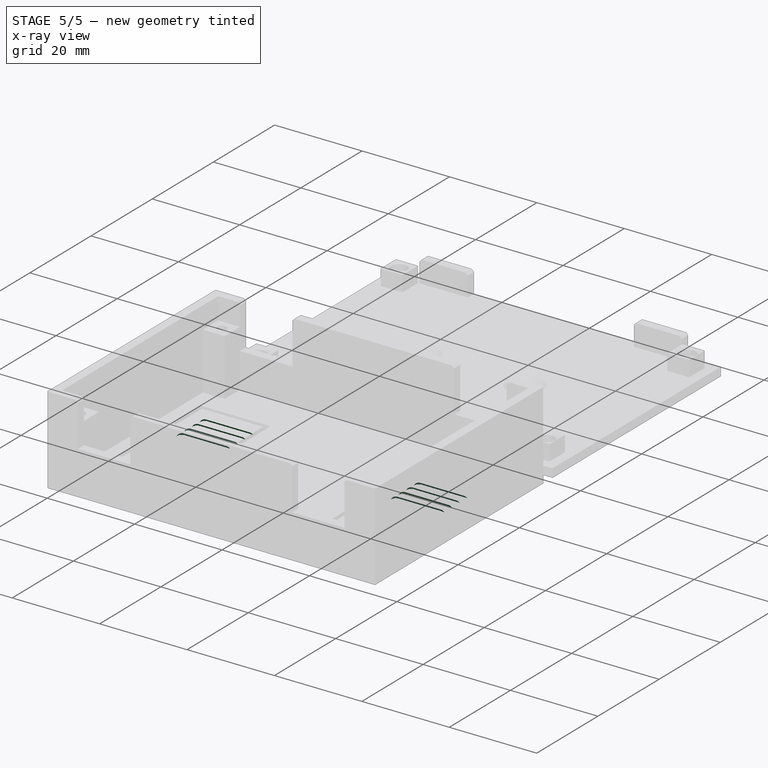
[diagram: stage 5 of 5 — x-ray composite at the iso view; earlier geometry ghosted, this stage's added geometry solid]
FEATURE [Sketcher::SketchObject] Sketch007
  FullyConstrained = true
  MapMode = 5
  Placement = pos=(0,0,0) rot=(1,0,0;3.14159rad)
  Support = -> [Pocket004]
  sketch-geometry (32):
    g0: ArcOfCircle CenterX=8 CenterY=-40 CenterZ=0 NormalX=0 NormalY=0 NormalZ=1 AngleXU=0 Radius=1 StartAngle=1.5708 EndAngle=4.71239
    g1: ArcOfCircle CenterX=18 CenterY=-40 CenterZ=0 NormalX=0 NormalY=0 NormalZ=1 AngleXU=0 Radius=1 StartAngle=4.71239 EndAngle=7.85398
    g2: LineSegment StartX=8 StartY=-41 StartZ=0 EndX=18 EndY=-41 EndZ=0
    g3: LineSegment StartX=18 StartY=-39 StartZ=0 EndX=8 EndY=-39 EndZ=0
    g4: ArcOfCircle CenterX=8 CenterY=-37.5 CenterZ=0 NormalX=0 NormalY=0 NormalZ=1 AngleXU=0 Radius=1 StartAngle=1.5708 EndAngle=4.71239
    g5: ArcOfCircle CenterX=18 CenterY=-37.5 CenterZ=0 NormalX=0 NormalY=0 NormalZ=1 AngleXU=0 Radius=1 StartAngle=4.71239 EndAngle=7.85398
    g6: LineSegment StartX=8 StartY=-38.5 StartZ=0 EndX=18 EndY=-38.5 EndZ=0
    g7: LineSegment StartX=18 StartY=-36.5 StartZ=0 EndX=8 EndY=-36.5 EndZ=0
    g8: ArcOfCircle CenterX=8 CenterY=-35 CenterZ=0 NormalX=0 NormalY=0 NormalZ=1 AngleXU=0 Radius=1 StartAngle=1.5708 EndAngle=4.71239
    g9: ArcOfCircle CenterX=18 CenterY=-35 CenterZ=0 NormalX=0 NormalY=0 NormalZ=1 AngleXU=0 Radius=1 StartAngle=4.71239 EndAngle=7.85398
    g10: LineSegment StartX=8 StartY=-36 StartZ=0 EndX=18 EndY=-36 EndZ=0
    g11: LineSegment StartX=18 StartY=-34 StartZ=0 EndX=8 EndY=-34 EndZ=0
    g12: ArcOfCircle CenterX=8 CenterY=-32.5 CenterZ=0 NormalX=0 NormalY=0 NormalZ=1 AngleXU=0 Radius=1 StartAngle=1.5708 EndAngle=4.71239
    g13: ArcOfCircle CenterX=18 CenterY=-32.5 CenterZ=0 NormalX=0 NormalY=0 NormalZ=1 AngleXU=0 Radius=1 StartAngle=4.71239 EndAngle=7.85398
    g14: LineSegment StartX=8 StartY=-33.5 StartZ=0 EndX=18 EndY=-33.5 EndZ=0
    g15: LineSegment StartX=18 StartY=-31.5 StartZ=0 EndX=8 EndY=-31.5 EndZ=0
    g16: ArcOfCircle CenterX=57 CenterY=-32.5 CenterZ=0 NormalX=0 NormalY=0 NormalZ=1 AngleXU=0 Radius=1 StartAngle=1.5708 EndAngle=4.71239
    g17: ArcOfCircle CenterX=67 CenterY=-32.5 CenterZ=0 NormalX=0 NormalY=0 NormalZ=1 AngleXU=0 Radius=1 StartAngle=4.71239 EndAngle=7.85398
    g18: LineSegment StartX=57 StartY=-33.5 StartZ=0 EndX=67 EndY=-33.5 EndZ=0
    g19: LineSegment StartX=67 StartY=-31.5 StartZ=0 EndX=57 EndY=-31.5 EndZ=0
    g20: ArcOfCircle CenterX=57 CenterY=-35 CenterZ=0 NormalX=0 NormalY=0 NormalZ=1 AngleXU=0 Radius=1 StartAngle=1.5708 EndAngle=4.71239
    g21: ArcOfCircle CenterX=67 CenterY=-35 CenterZ=0 NormalX=0 NormalY=0 NormalZ=1 AngleXU=0 Radius=1 StartAngle=4.71239 EndAngle=7.85398
    g22: LineSegment StartX=57 StartY=-36 StartZ=0 EndX=67 EndY=-36 EndZ=0
    g23: LineSegment StartX=67 StartY=-34 StartZ=0 EndX=57 EndY=-34 EndZ=0
    g24: ArcOfCircle CenterX=57 CenterY=-37.5 CenterZ=0 NormalX=0 NormalY=0 NormalZ=1 AngleXU=0 Radius=1 StartAngle=1.5708 EndAngle=4.71239
    g25: ArcOfCircle CenterX=67 CenterY=-37.5 CenterZ=0 NormalX=0 NormalY=0 NormalZ=1 AngleXU=0 Radius=1 StartAngle=4.71239 EndAngle=7.85398
    g26: LineSegment StartX=57 StartY=-38.5 StartZ=0 EndX=67 EndY=-38.5 EndZ=0
    g27: LineSegment StartX=67 StartY=-36.5 StartZ=0 EndX=57 EndY=-36.5 EndZ=0
    g28: ArcOfCircle CenterX=57 CenterY=-40 CenterZ=0 NormalX=0 NormalY=0 NormalZ=1 AngleXU=0 Radius=1 StartAngle=1.5708 EndAngle=4.71239
    g29: ArcOfCircle CenterX=67 CenterY=-40 CenterZ=0 NormalX=0 NormalY=0 NormalZ=1 AngleXU=0 Radius=1 StartAngle=4.71239 EndAngle=7.85398
    g30: LineSegment StartX=57 StartY=-41 StartZ=0 EndX=67 EndY=-41 EndZ=0
    g31: LineSegment StartX=67 StartY=-39 StartZ=0 EndX=57 EndY=-39 EndZ=0
  constraints (80):
    c: Tangent(g0,g2) = -1.5708
    c: Tangent(g2,g1) = -1.5708
    c: Tangent(g1,g3) = -1.5708
    c: Tangent(g3,g0) = -1.5708
    c: Equal(g0,g1)
    c: Horizontal(g2)
    c: Tangent(g4,g6) = -1.5708
    c: Tangent(g6,g5) = -1.5708
    c: Tangent(g5,g7) = -1.5708
    c: Tangent(g7,g4) = -1.5708
    c: Equal(g4,g5)
    c: Horizontal(g6)
    c: Tangent(g8,g10) = -1.5708
    c: Tangent(g10,g9) = -1.5708
    c: Tangent(g9,g11) = -1.5708
    c: Tangent(g11,g8) = -1.5708
    c: Equal(g8,g9)
    c: Horizontal(g10)
    c: Tangent(g12,g14) = -1.5708
    c: Tangent(g14,g13) = -1.5708
    c: Tangent(g13,g15) = -1.5708
    c: Tangent(g15,g12) = -1.5708
    c: Equal(g12,g13)
    c: Horizontal(g14)
    c: Tangent(g16,g18) = -1.5708
    c: Tangent(g18,g17) = -1.5708
    c: Tangent(g17,g19) = -1.5708
    c: Tangent(g19,g16) = -1.5708
    c: Equal(g16,g17)
    c: Horizontal(g18)
    c: Tangent(g20,g22) = -1.5708
    c: Tangent(g22,g21) = -1.5708
    c: Tangent(g21,g23) = -1.5708
    c: Tangent(g23,g20) = -1.5708
    c: Equal(g20,g21)
    c: Horizontal(g22)
    c: Tangent(g24,g26) = -1.5708
    c: Tangent(g26,g25) = -1.5708
    c: Tangent(g25,g27) = -1.5708
    c: Tangent(g27,g24) = -1.5708
    c: Equal(g24,g25)
    c: Horizontal(g26)
    c: Tangent(g28,g30) = -1.5708
    c: Tangent(g30,g29) = -1.5708
    c: Tangent(g29,g31) = -1.5708
    c: Tangent(g31,g28) = -1.5708
    c: Equal(g28,g29)
    c: Horizontal(g30)
    c: Equal(g12,g8)
    c: Equal(g8,g4)
    c: Equal(g4,g0)
    c: Equal(g0,g16)
    c: Equal(g16,g20)
    c: Equal(g20,g24)
    c: Equal(g24,g28)
    c: Radius(g0) = 1
    c: Vertical(g0,g4)
    c: Vertical(g4,g8)
    c: Vertical(g8,g12)
    c: Vertical(g1,g5)
    c: Vertical(g5,g9)
    c: Vertical(g9,g13)
    c: Vertical(g16,g20)
    c: Vertical(g20,g24)
    c: Vertical(g24,g28)
    c: Vertical(g29,g25)
    c: Vertical(g25,g21)
    c: Vertical(g21,g17)
    c: DistanceX(g0,g1) = 10
    c: DistanceX(g-1,g0) = 8
    c: DistanceX(g-1,g29) = 67
    c: DistanceX(g28,g29) = 10
    c: Horizontal(g1,g28)
    c: Horizontal(g24,g5)
    c: Horizontal(g9,g20)
    c: Horizontal(g16,g13)
    c: DistanceY(g0,g-1) = 40
    c: DistanceY(g0,g4) = 2.5
    c: DistanceY(g4,g8) = 2.5
    c: DistanceY(g8,g12) = 2.5
FEATURE [PartDesign::Pocket] Pocket005
  BaseFeature = -> Pocket004
  Direction = (0,0,1)
  Length = 1
  Length2 = 5
  Profile = -> Sketch007
  ReferenceAxis = -> Sketch007 [N_Axis]
  Type = 0
FEATURE [PartDesign::Fillet] Fillet
  Base = -> Pocket005 [Edge144,Edge152,Edge160,Edge168,Edge178,Edge186,Edge194,Edge202]
  BaseFeature = -> Pocket005
  Radius = 0.95
  SupportTransform = false
  UseAllEdges = false
FEATURE [PartDesign::Chamfer] Chamfer
  Angle = 45
  Base = -> Fillet [Edge213,Edge205,Edge204,Edge193,Edge225,Edge197,Edge214,Edge224]
  BaseFeature = -> Fillet
  ChamferType = 0
  FlipDirection = false
  Size = 0.5
  Size2 = 1
  SupportTransform = false
  UseAllEdges = false
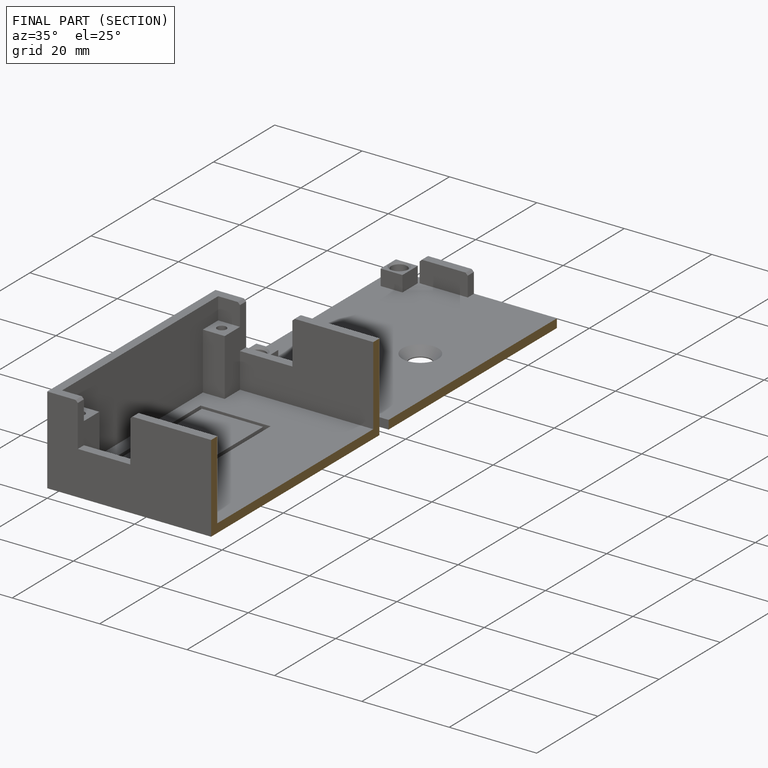
[diagram: finished part — half-section view (interior)]
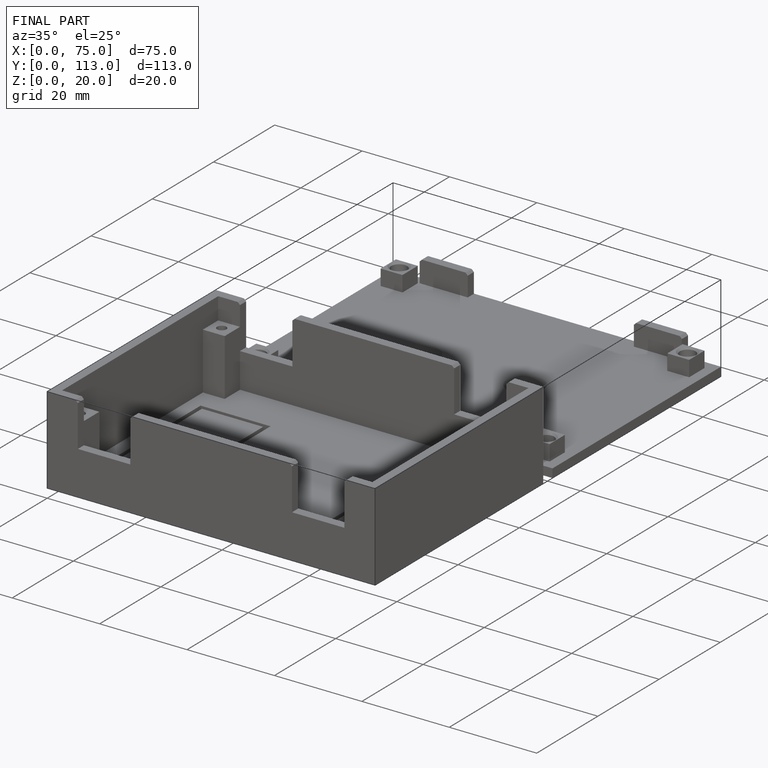
[diagram: finished part — iso view with bounding-box wireframe]
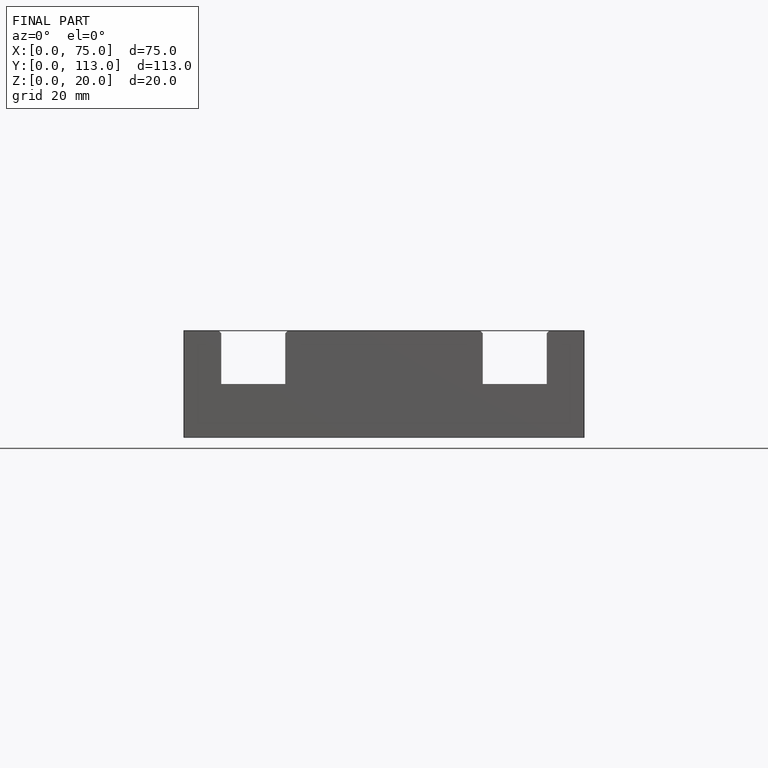
[diagram: finished part — front view with bounding-box wireframe]
